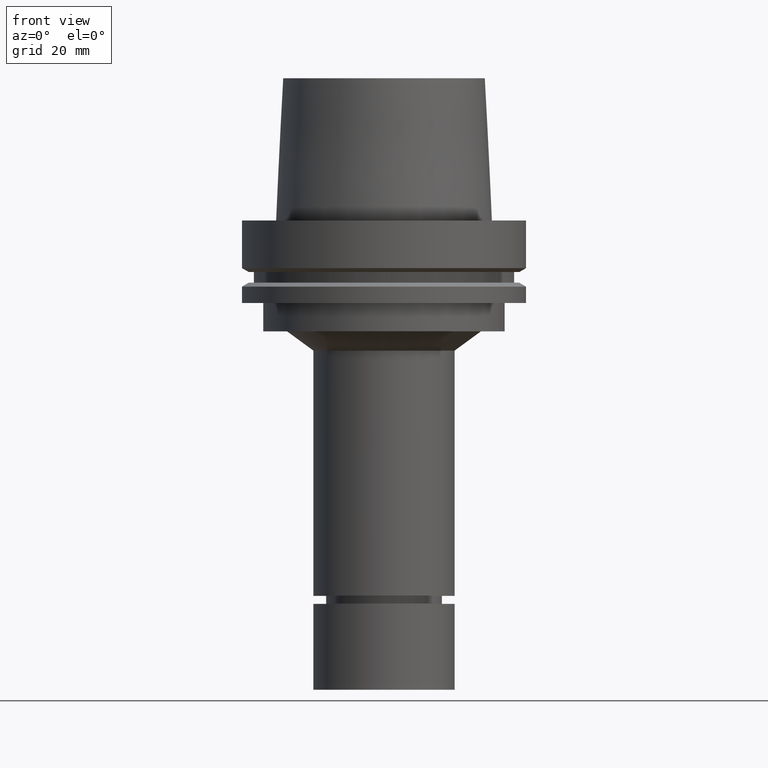
[diagram: clean part render]
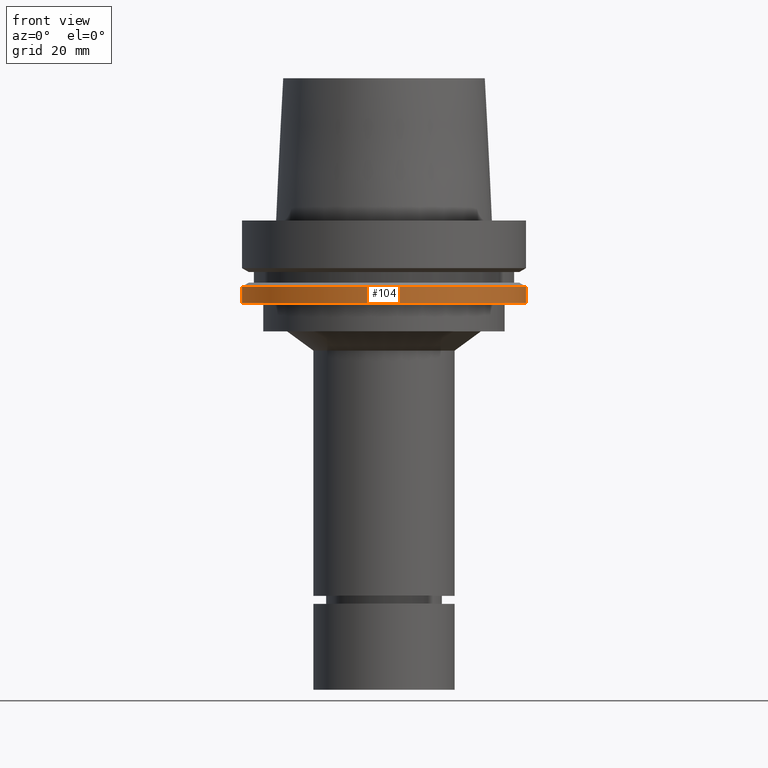
[diagram: same view with one face highlighted and labeled with its STEP entity id]
A machine part, front view. The second image highlights one B-rep face of the part: STEP entity #104.
In plain terms, the highlighted cylindrical surface (bore or boss wall) has radius 50 mm, axis along (0, 0, -1).
Its self-contained STEP definition (entity closure, byte-faithful):
#104=ADVANCED_FACE('Unnamed[1]',(#256,#257),#258,.T.);
#122=EDGE_CURVE('Unnamed[1]',#285,#285,#286,.T.);
#154=EDGE_CURVE('Unnamed[1]',#334,#334,#335,.T.);
#256=FACE_BOUND('',#464,.T.);
#257=FACE_BOUND('',#465,.T.);
#258=CYLINDRICAL_SURFACE('',#466,50.0);
#285=VERTEX_POINT('',#501);
#286=CIRCLE('',#502,50.0);
#334=VERTEX_POINT('',#562);
#335=CIRCLE('',#563,50.0);
#464=EDGE_LOOP('',(#690));
#465=EDGE_LOOP('',(#691));
#466=AXIS2_PLACEMENT_3D('',#692,#693,#694);
#501=CARTESIAN_POINT('',(1.77573785876366E-015,50.0,-29.0));
#502=AXIS2_PLACEMENT_3D('',#722,#723,#724);
#562=CARTESIAN_POINT('',(1.42350465615161E-015,50.0,-23.24759526));
#563=AXIS2_PLACEMENT_3D('',#779,#780,#781);
#690=ORIENTED_EDGE('',*,*,#122,.F.);
#691=ORIENTED_EDGE('',*,*,#154,.T.);
#692=CARTESIAN_POINT('',(1.59962125745764E-015,3.19924251491527E-015,-26.12379763));
#693=DIRECTION('',(6.12323399573677E-017,1.22464679914735E-016,-1.0));
#694=DIRECTION('',(-1.23259516440783E-032,1.0,1.22464679914735E-016));
#722=CARTESIAN_POINT('',(1.77573785876366E-015,3.55147571752733E-015,-29.0));
#723=DIRECTION('',(6.12323399573677E-017,1.22464679914735E-016,-1.0));
#724=DIRECTION('',(-1.23259516440783E-032,1.0,1.22464679914735E-016));
#779=CARTESIAN_POINT('',(1.42350465615161E-015,2.84700931230322E-015,-23.24759526));
#780=DIRECTION('',(6.12323399573677E-017,1.22464679914735E-016,-1.0));
#781=DIRECTION('',(-1.23259516440783E-032,1.0,1.22464679914735E-016));